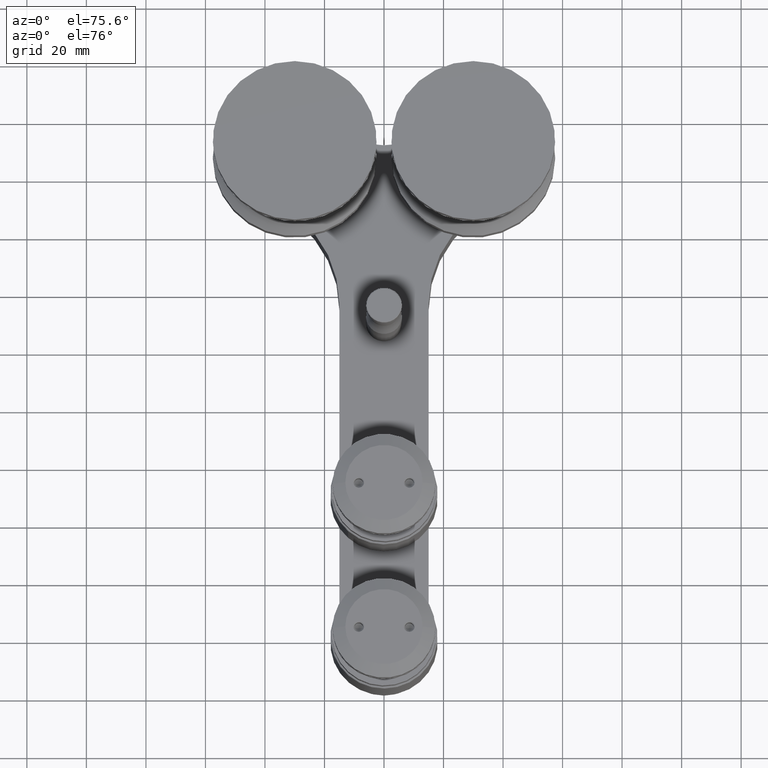
[diagram: clean part render]
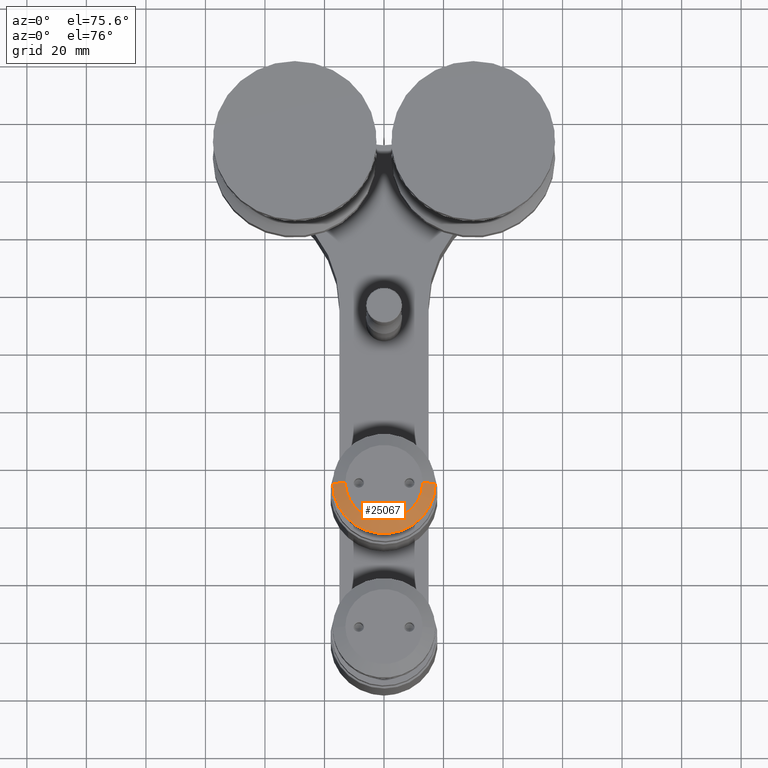
[diagram: same view with one face highlighted and labeled with its STEP entity id]
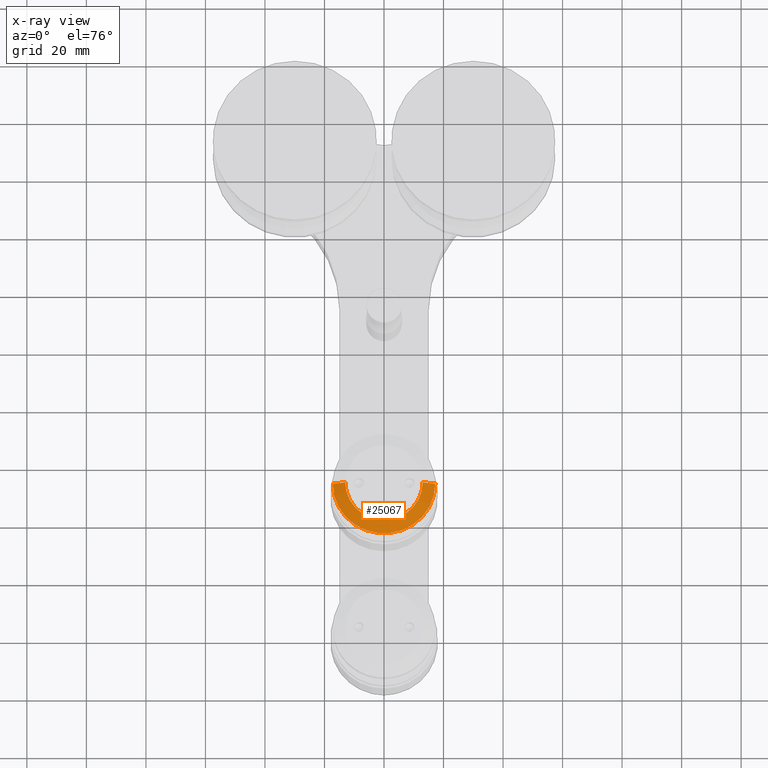
[diagram: x-ray of the same camera — body ghosted, the highlighted face saturated]
A machine part, auxiliary view. The second image highlights one B-rep face of the part: STEP entity #25067.
The next image is the same camera in x-ray: the body ghosted, the highlighted face saturated — about 0% of this face is hidden behind the body in this view.
In plain terms, the highlighted conical surface has half-angle 67.046 deg.
Its self-contained STEP definition (entity closure, byte-faithful):
#142 = ORIENTED_EDGE ( 'NONE', *, *, #46297, .T. ) ;
#766 = CARTESIAN_POINT ( 'NONE',  ( 0.0000000000000000000, 0.0000000000000000000, 1.799999999999996000 ) ) ;
#1359 = DIRECTION ( 'NONE',  ( 1.000000000000000000, 2.465190328815660000E-032, 0.0000000000000000000 ) ) ;
#3559 = CARTESIAN_POINT ( 'NONE',  ( 13.00000000000001100, 3.204747427460360500E-031, 0.0000000000000000000 ) ) ;
#7422 = ORIENTED_EDGE ( 'NONE', *, *, #30357, .F. ) ;
#9640 = CIRCLE ( 'NONE', #11754, 17.25000000000001400 ) ;
#11692 = VERTEX_POINT ( 'NONE', #41955 ) ;
#11754 = AXIS2_PLACEMENT_3D ( 'NONE', #766, #25874, #40130 ) ;
#12143 = CARTESIAN_POINT ( 'NONE',  ( 0.0000000000000000000, 0.0000000000000000000, 0.0000000000000000000 ) ) ;
#12172 = ORIENTED_EDGE ( 'NONE', *, *, #12351, .F. ) ;
#12351 = EDGE_CURVE ( 'NONE', #32648, #23094, #35639, .T. ) ;
#14147 = CIRCLE ( 'NONE', #15039, 13.00000000000001100 ) ;
#15039 = AXIS2_PLACEMENT_3D ( 'NONE', #12143, #19478, #1359 ) ;
#15412 = CARTESIAN_POINT ( 'NONE',  ( -17.25000000000000000, 2.112515728529184100E-015, 1.799999999999996000 ) ) ;
#16218 = EDGE_LOOP ( 'NONE', ( #142, #39232, #7422, #12172 ) ) ;
#18190 = VERTEX_POINT ( 'NONE', #15412 ) ;
#19478 = DIRECTION ( 'NONE',  ( 0.0000000000000000000, 0.0000000000000000000, 1.000000000000000000 ) ) ;
#19927 = LINE ( 'NONE', #20045, #28324 ) ;
#20045 = CARTESIAN_POINT ( 'NONE',  ( -13.00000000000001100, 1.592040838891560100E-015, 0.0000000000000000000 ) ) ;
#20825 = CARTESIAN_POINT ( 'NONE',  ( 0.0000000000000000000, 0.0000000000000000000, 0.0000000000000000000 ) ) ;
#23094 = VERTEX_POINT ( 'NONE', #26094 ) ;
#24915 = EDGE_CURVE ( 'NONE', #11692, #18190, #19927, .T. ) ;
#25067 = ADVANCED_FACE ( 'NONE', ( #31094 ), #42297, .T. ) ;
#25874 = DIRECTION ( 'NONE',  ( 0.0000000000000000000, 0.0000000000000000000, 1.000000000000000000 ) ) ;
#26094 = CARTESIAN_POINT ( 'NONE',  ( 17.25000000000001400, 4.252453317207016800E-031, 1.799999999999996000 ) ) ;
#26919 = DIRECTION ( 'NONE',  ( -0.9208176667771373900, 1.127676408216955300E-016, 0.3899933647526695500 ) ) ;
#28324 = VECTOR ( 'NONE', #26919, 999.9999999999998900 ) ;
#28542 = DIRECTION ( 'NONE',  ( 0.9208176667771373900, 2.269990806741600300E-032, 0.3899933647526695500 ) ) ;
#29597 = AXIS2_PLACEMENT_3D ( 'NONE', #20825, #42574, #31456 ) ;
#30357 = EDGE_CURVE ( 'NONE', #23094, #18190, #9640, .T. ) ;
#31094 = FACE_OUTER_BOUND ( 'NONE', #16218, .T. ) ;
#31456 = DIRECTION ( 'NONE',  ( 1.000000000000000000, 2.465190328815660000E-032, 0.0000000000000000000 ) ) ;
#32648 = VERTEX_POINT ( 'NONE', #43032 ) ;
#35639 = LINE ( 'NONE', #3559, #44038 ) ;
#39232 = ORIENTED_EDGE ( 'NONE', *, *, #24915, .T. ) ;
#40130 = DIRECTION ( 'NONE',  ( 1.000000000000000000, 2.465190328815660000E-032, 0.0000000000000000000 ) ) ;
#41955 = CARTESIAN_POINT ( 'NONE',  ( -13.00000000000000000, 1.852278283710372700E-015, 0.0000000000000000000 ) ) ;
#42297 = CONICAL_SURFACE ( 'NONE', #29597, 13.00000000000001100, 1.170171939925574600 ) ;
#42574 = DIRECTION ( 'NONE',  ( 0.0000000000000000000, 0.0000000000000000000, 1.000000000000000000 ) ) ;
#43032 = CARTESIAN_POINT ( 'NONE',  ( 13.00000000000001100, 3.204747427460360500E-031, 0.0000000000000000000 ) ) ;
#44038 = VECTOR ( 'NONE', #28542, 999.9999999999998900 ) ;
#46297 = EDGE_CURVE ( 'NONE', #32648, #11692, #14147, .T. ) ;